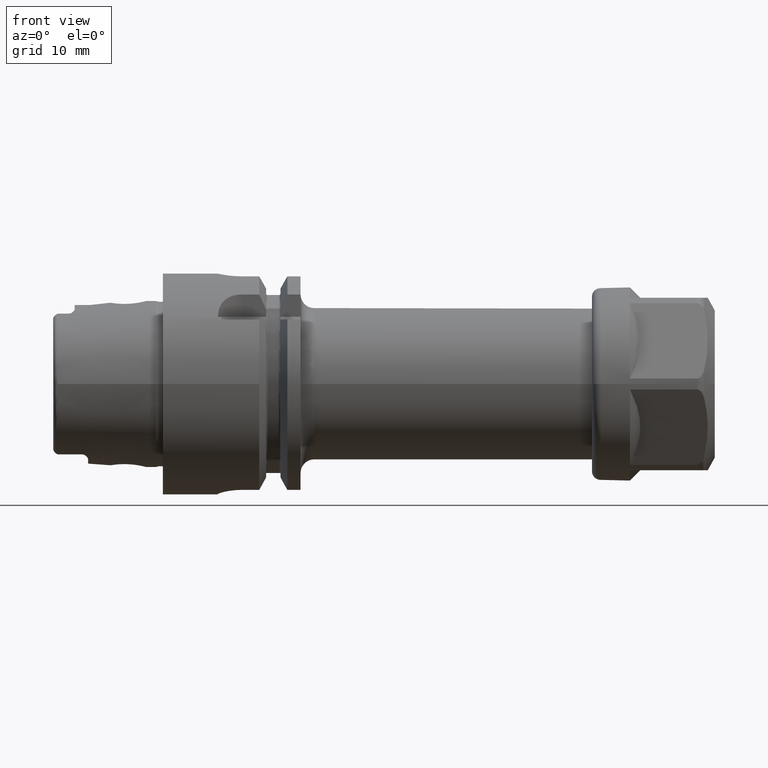
[diagram: clean part render]
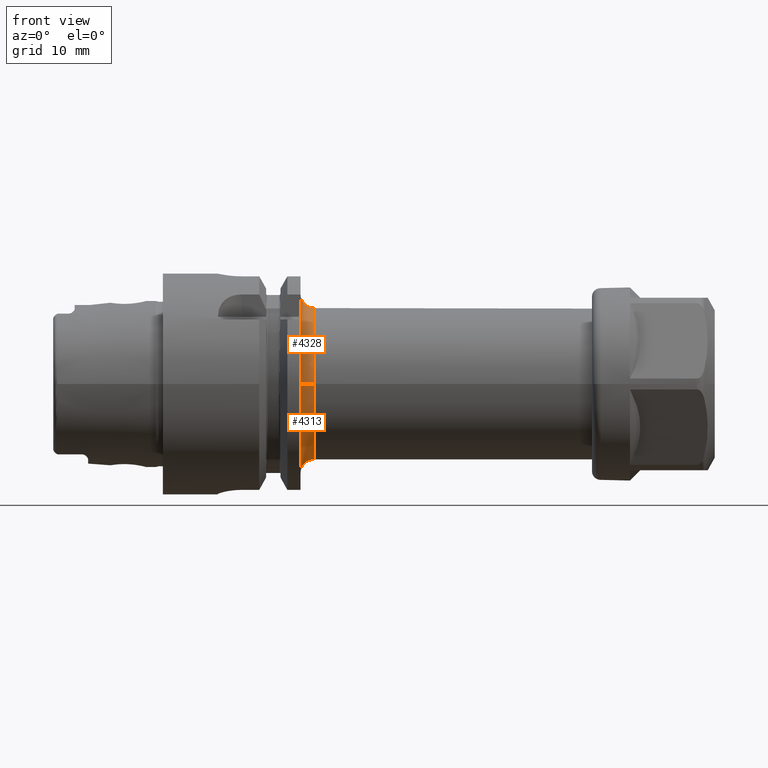
[diagram: same view with one multi-face feature highlighted, each face labeled with its STEP entity id]
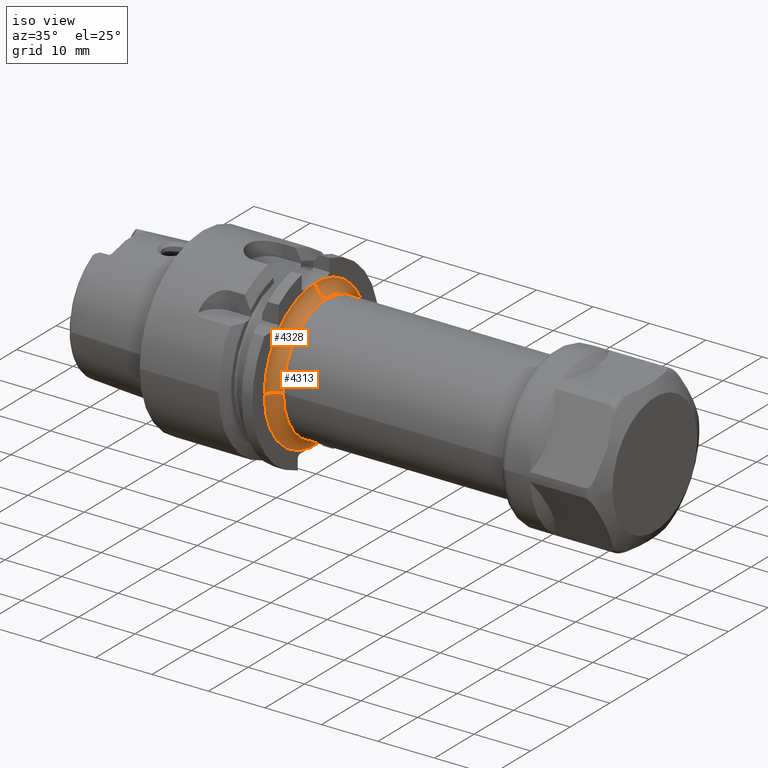
[diagram: same view with one multi-face feature highlighted, each face labeled with its STEP entity id]
A machine part, front view. The highlighted faces form ONE feature: a constant-radius fillet chain: 2 tangent blend faces with common blend radius 2 mm. The faces share edges in the B-rep.
A second angle (iso view) of the same feature is appended — it is thin or edge-on in the first view.
Their STEP definitions:
[1] entity #4313 (Torus):
#1148=CARTESIAN_POINT('',(1.995E1,0.E0,0.E0));
#1149=DIRECTION('',(1.E0,0.E0,0.E0));
#1150=DIRECTION('',(0.E0,-1.E0,0.E0));
#1151=AXIS2_PLACEMENT_3D('',#1148,#1149,#1150);
#1198=CARTESIAN_POINT('',(1.995E1,1.609346454871E0,-1.289999386448E1));
#1199=CARTESIAN_POINT('',(1.995E1,1.251929468013E0,-1.289999386448E1));
#1200=CARTESIAN_POINT('',(1.995263213600E1,5.369454978978E-1,
-1.290000267860E1));
#1201=CARTESIAN_POINT('',(1.995263213672E1,-5.369440437494E-1,
-1.289999982820E1));
#1202=CARTESIAN_POINT('',(1.995E1,-1.251933180569E0,-1.289999861514E1));
#1203=CARTESIAN_POINT('',(1.995E1,-1.609350248663E0,-1.289999861514E1));
#1205=CARTESIAN_POINT('',(2.195E1,-1.3E1,2.277344979262E-13));
#1206=DIRECTION('',(0.E0,-1.751810502215E-14,-1.E0));
#1207=DIRECTION('',(-1.E0,1.598721155460E-14,0.E0));
#1208=AXIS2_PLACEMENT_3D('',#1205,#1206,#1207);
#1210=CARTESIAN_POINT('',(2.195E1,0.E0,0.E0));
#1211=DIRECTION('',(1.E0,0.E0,0.E0));
#1212=DIRECTION('',(0.E0,-1.E0,0.E0));
#1213=AXIS2_PLACEMENT_3D('',#1210,#1211,#1212);
#1215=CARTESIAN_POINT('',(1.995E1,0.E0,0.E0));
#1216=DIRECTION('',(-1.E0,0.E0,0.E0));
#1217=DIRECTION('',(0.E0,1.237940319530E-1,9.923079348936E-1));
#1218=AXIS2_PLACEMENT_3D('',#1215,#1216,#1217);
#1220=CARTESIAN_POINT('',(2.195E1,5.429346461513E-5,1.299999999989E1));
#1221=DIRECTION('',(0.E0,-9.999999999913E-1,4.176420355010E-6));
#1222=DIRECTION('',(-9.987492177747E-1,-2.088210175156E-7,-4.999999994331E-2));
#1223=AXIS2_PLACEMENT_3D('',#1220,#1221,#1222);
#1230=CARTESIAN_POINT('',(2.195E1,0.E0,0.E0));
#1231=DIRECTION('',(1.E0,0.E0,0.E0));
#1232=DIRECTION('',(0.E0,1.E0,0.E0));
#1233=AXIS2_PLACEMENT_3D('',#1230,#1231,#1232);
#1369=CARTESIAN_POINT('',(1.995E1,1.609350145335E0,1.289999862659E1));
#1370=CARTESIAN_POINT('',(1.995E1,1.431079777640E0,1.289999862659E1));
#1371=CARTESIAN_POINT('',(1.995071250637E1,1.074170212440E0,1.290000064093E1));
#1372=CARTESIAN_POINT('',(1.995210684522E1,5.372735788511E-1,1.289999981688E1));
#1373=CARTESIAN_POINT('',(1.995250152699E1,1.791997376817E-1,1.29E1));
#1374=CARTESIAN_POINT('',(1.995250156445E1,5.387582257923E-5,1.29E1));
#3112=CARTESIAN_POINT('',(1.995E1,-1.3E1,0.E0));
#3113=CARTESIAN_POINT('',(1.995E1,-1.609322449612E0,-1.290000314935E1));
#3114=VERTEX_POINT('',#3112);
#3115=VERTEX_POINT('',#3113);
#3116=CARTESIAN_POINT('',(2.195E1,3.927817853579E-5,1.099999999993E1));
#3117=CARTESIAN_POINT('',(2.195E1,-1.1E1,0.E0));
#3118=VERTEX_POINT('',#3116);
#3119=VERTEX_POINT('',#3117);
#3122=CARTESIAN_POINT('',(2.195E1,1.1E1,0.E0));
#3123=VERTEX_POINT('',#3122);
#3124=CARTESIAN_POINT('',(1.995E1,1.609346454871E0,-1.289999386448E1));
#3125=VERTEX_POINT('',#3124);
#3130=CARTESIAN_POINT('',(1.995250156445E1,5.387582258010E-5,1.29E1));
#3131=VERTEX_POINT('',#3130);
#3132=CARTESIAN_POINT('',(1.995E1,1.609322415389E0,1.290000315362E1));
#3133=VERTEX_POINT('',#3132);
#4293=CARTESIAN_POINT('',(2.195E1,0.E0,0.E0));
#4294=DIRECTION('',(1.E0,0.E0,0.E0));
#4295=DIRECTION('',(0.E0,9.999755738620E-1,-6.989397636901E-3));
#4296=AXIS2_PLACEMENT_3D('',#4293,#4294,#4295);
#4297=TOROIDAL_SURFACE('',#4296,1.3E1,2.E0);
#4298=ORIENTED_EDGE('',*,*,#4237,.T.);
#4299=ORIENTED_EDGE('',*,*,#4247,.F.);
#4301=ORIENTED_EDGE('',*,*,#4300,.T.);
#4303=ORIENTED_EDGE('',*,*,#4302,.T.);
#4305=ORIENTED_EDGE('',*,*,#4304,.T.);
#4307=ORIENTED_EDGE('',*,*,#4306,.F.);
#4309=ORIENTED_EDGE('',*,*,#4308,.F.);
#4310=ORIENTED_EDGE('',*,*,#4276,.T.);
#4311=EDGE_LOOP('',(#4298,#4299,#4301,#4303,#4305,#4307,#4309,#4310));
#4312=FACE_OUTER_BOUND('',#4311,.F.);
#4313=ADVANCED_FACE('',(#4312),#4297,.F.);
#1152=CIRCLE('',#1151,1.3E1);
#1204=B_SPLINE_CURVE_WITH_KNOTS('',3,(#1198,#1199,#1200,#1201,#1202,#1203),
.UNSPECIFIED.,.F.,.F.,(4,1,1,4),(0.E0,3.333333333333E-1,6.666666666667E-1,1.E0),
.UNSPECIFIED.);
#1209=CIRCLE('',#1208,2.E0);
#1214=CIRCLE('',#1213,1.1E1);
#1219=CIRCLE('',#1218,1.3E1);
#1224=CIRCLE('',#1223,2.E0);
#1234=CIRCLE('',#1233,1.1E1);
#1375=B_SPLINE_CURVE_WITH_KNOTS('',3,(#1369,#1370,#1371,#1372,#1373,#1374),
.UNSPECIFIED.,.F.,.F.,(4,1,1,4),(0.E0,3.333333333333E-1,6.666666666667E-1,1.E0),
.UNSPECIFIED.);
#4237=EDGE_CURVE('',#3125,#3115,#1204,.T.);
#4247=EDGE_CURVE('',#3114,#3115,#1152,.T.);
#4276=EDGE_CURVE('',#3133,#3125,#1219,.T.);
#4300=EDGE_CURVE('',#3114,#3119,#1209,.T.);
#4302=EDGE_CURVE('',#3119,#3123,#1214,.T.);
#4304=EDGE_CURVE('',#3123,#3118,#1234,.T.);
#4306=EDGE_CURVE('',#3131,#3118,#1224,.T.);
#4308=EDGE_CURVE('',#3133,#3131,#1375,.T.);
[2] entity #4328 (Torus):
#1177=CARTESIAN_POINT('',(1.995E1,0.E0,0.E0));
#1178=DIRECTION('',(1.E0,0.E0,0.E0));
#1179=DIRECTION('',(0.E0,-1.237845096910E-1,9.923091227841E-1));
#1180=AXIS2_PLACEMENT_3D('',#1177,#1178,#1179);
#1205=CARTESIAN_POINT('',(2.195E1,-1.3E1,2.277344979262E-13));
#1206=DIRECTION('',(0.E0,-1.751810502215E-14,-1.E0));
#1207=DIRECTION('',(-1.E0,1.598721155460E-14,0.E0));
#1208=AXIS2_PLACEMENT_3D('',#1205,#1206,#1207);
#1220=CARTESIAN_POINT('',(2.195E1,5.429346461513E-5,1.299999999989E1));
#1221=DIRECTION('',(0.E0,-9.999999999913E-1,4.176420355010E-6));
#1222=DIRECTION('',(-9.987492177747E-1,-2.088210175156E-7,-4.999999994331E-2));
#1223=AXIS2_PLACEMENT_3D('',#1220,#1221,#1222);
#1225=CARTESIAN_POINT('',(2.195E1,0.E0,0.E0));
#1226=DIRECTION('',(1.E0,0.E0,0.E0));
#1227=DIRECTION('',(0.E0,3.570743503254E-6,9.999999999936E-1));
#1228=AXIS2_PLACEMENT_3D('',#1225,#1226,#1227);
#1299=CARTESIAN_POINT('',(1.995250156445E1,5.387582257923E-5,1.29E1));
#1300=CARTESIAN_POINT('',(1.995250160191E1,-1.791254290527E-1,1.29E1));
#1301=CARTESIAN_POINT('',(1.995210694531E1,-5.372525181775E-1,
1.289999918864E1));
#1302=CARTESIAN_POINT('',(1.995071215998E1,-1.074292502983E0,1.290000283976E1));
#1303=CARTESIAN_POINT('',(1.995E1,-1.431131167732E0,1.289999391479E1));
#1304=CARTESIAN_POINT('',(1.995E1,-1.609346006154E0,1.289999391479E1));
#3112=CARTESIAN_POINT('',(1.995E1,-1.3E1,0.E0));
#3114=VERTEX_POINT('',#3112);
#3116=CARTESIAN_POINT('',(2.195E1,3.927817853579E-5,1.099999999993E1));
#3117=CARTESIAN_POINT('',(2.195E1,-1.1E1,0.E0));
#3118=VERTEX_POINT('',#3116);
#3119=VERTEX_POINT('',#3117);
#3120=CARTESIAN_POINT('',(1.995E1,-1.609198625983E0,1.290001859619E1));
#3121=VERTEX_POINT('',#3120);
#3130=CARTESIAN_POINT('',(1.995250156445E1,5.387582258010E-5,1.29E1));
#3131=VERTEX_POINT('',#3130);
#4314=CARTESIAN_POINT('',(2.195E1,0.E0,0.E0));
#4315=DIRECTION('',(1.E0,0.E0,0.E0));
#4316=DIRECTION('',(0.E0,1.485959642860E-3,-9.999988959614E-1));
#4317=AXIS2_PLACEMENT_3D('',#4314,#4315,#4316);
#4318=TOROIDAL_SURFACE('',#4317,1.3E1,2.E0);
#4320=ORIENTED_EDGE('',*,*,#4319,.T.);
#4321=ORIENTED_EDGE('',*,*,#4300,.F.);
#4322=ORIENTED_EDGE('',*,*,#4266,.F.);
#4324=ORIENTED_EDGE('',*,*,#4323,.F.);
#4325=ORIENTED_EDGE('',*,*,#4306,.T.);
#4326=EDGE_LOOP('',(#4320,#4321,#4322,#4324,#4325));
#4327=FACE_OUTER_BOUND('',#4326,.F.);
#4328=ADVANCED_FACE('',(#4327),#4318,.F.);
#1181=CIRCLE('',#1180,1.3E1);
#1209=CIRCLE('',#1208,2.E0);
#1224=CIRCLE('',#1223,2.E0);
#1229=CIRCLE('',#1228,1.1E1);
#1305=B_SPLINE_CURVE_WITH_KNOTS('',3,(#1299,#1300,#1301,#1302,#1303,#1304),
.UNSPECIFIED.,.F.,.F.,(4,1,1,4),(0.E0,3.333333333333E-1,6.666666666667E-1,1.E0),
.UNSPECIFIED.);
#4266=EDGE_CURVE('',#3121,#3114,#1181,.T.);
#4300=EDGE_CURVE('',#3114,#3119,#1209,.T.);
#4306=EDGE_CURVE('',#3131,#3118,#1224,.T.);
#4319=EDGE_CURVE('',#3118,#3119,#1229,.T.);
#4323=EDGE_CURVE('',#3131,#3121,#1305,.T.);